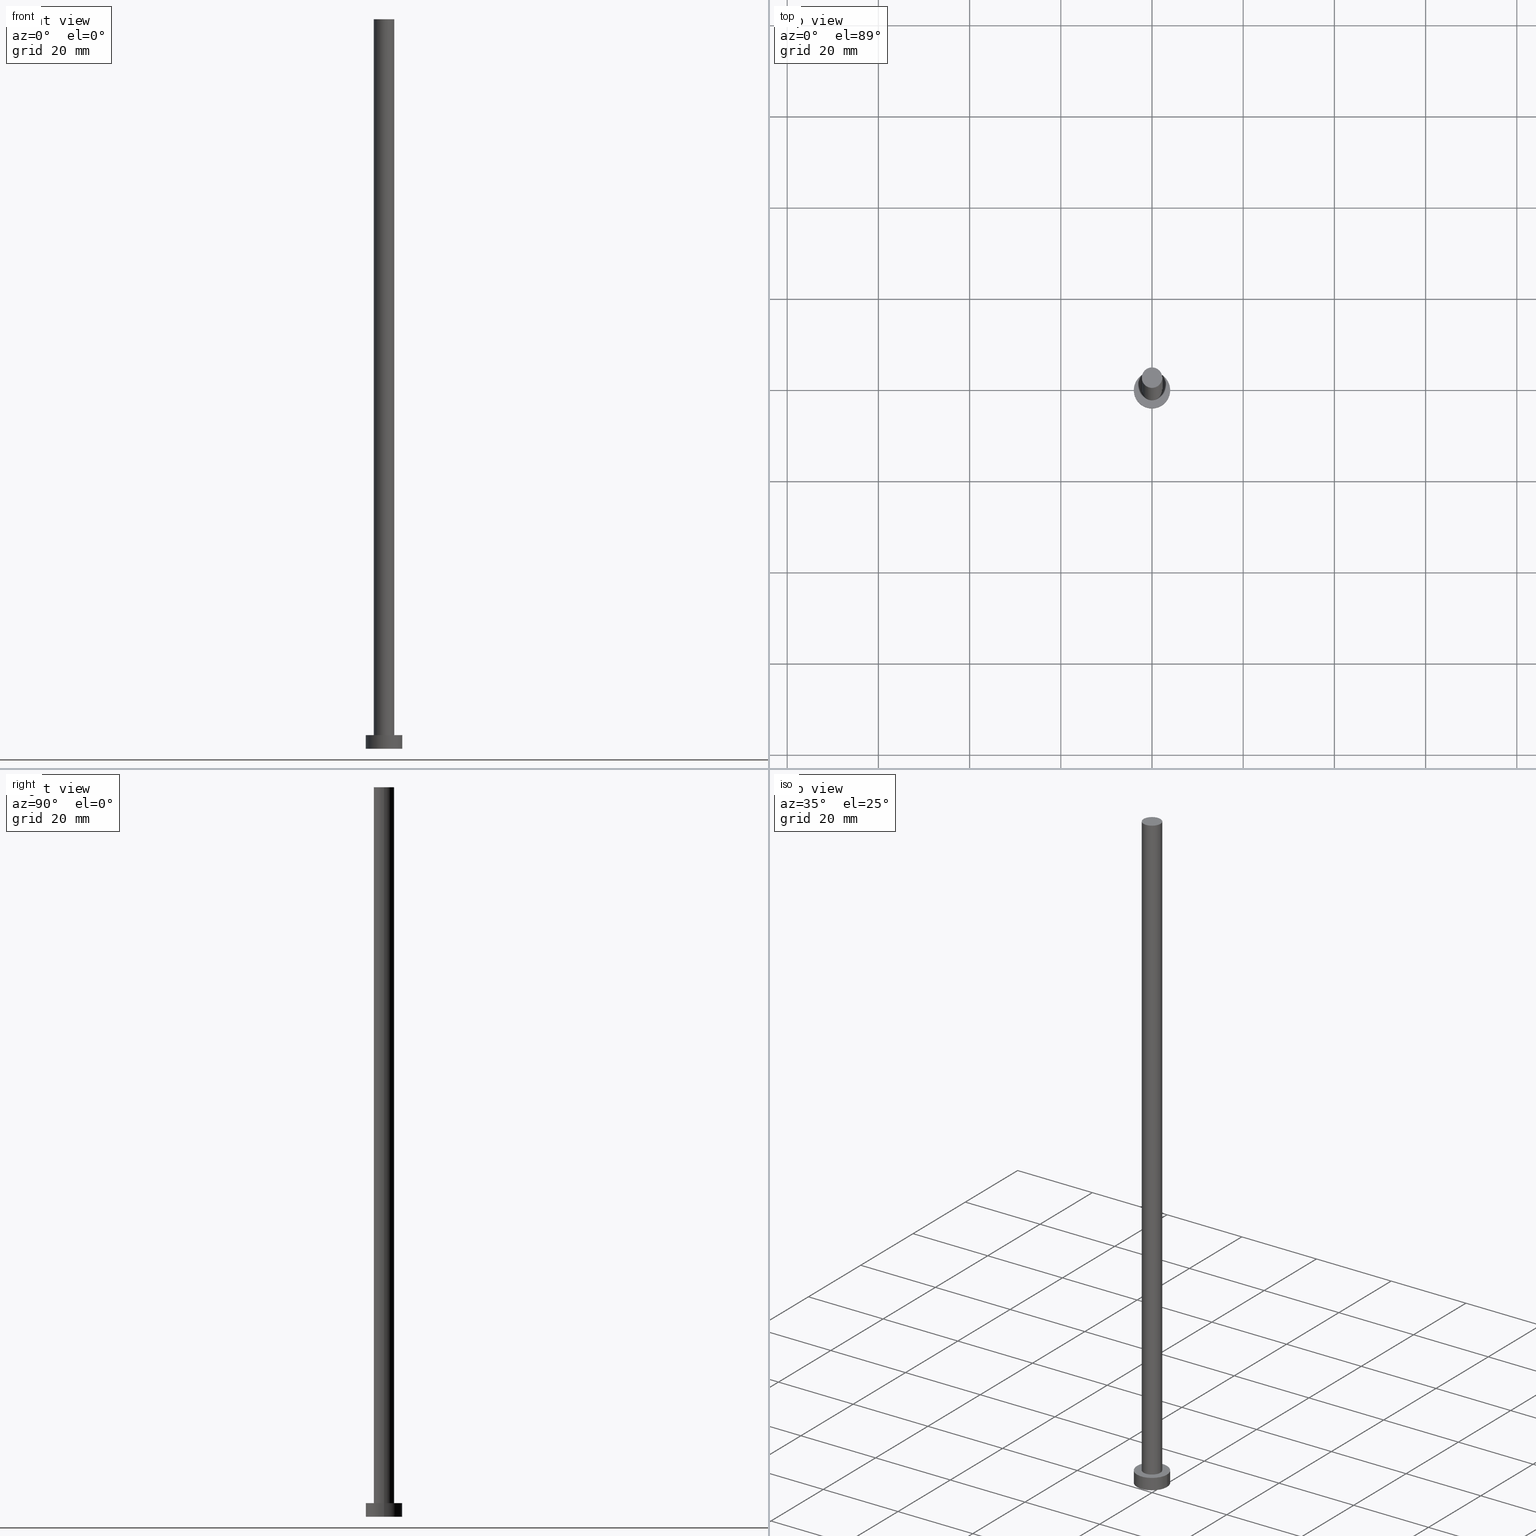
[diagram: canonical four-view strip — front | top / right | iso, engineering-drawing reading convention]
A machine part, canonical four-view strip (front | top / right | iso — engineering-drawing reading convention). The complete STEP part file that produces these views, byte-faithful:
ISO-10303-21;
HEADER;
FILE_DESCRIPTION (( 'STEP AP203' ),
    '1' );
FILE_NAME ('09de.STEP',
    '2023-02-13T13:28:34',
    ( '' ),
    ( '' ),
    'SwSTEP 2.0',
    'SolidWorks 2019',
    '' );
FILE_SCHEMA (( 'CONFIG_CONTROL_DESIGN' ));
ENDSEC;

DATA;
#1 = APPROVAL_DATE_TIME ( #38, #107 ) ;
#2 = CC_DESIGN_APPROVAL ( #107, ( #203 ) ) ;
#3 = CIRCLE ( 'NONE', #208, 4.000000000000000000 ) ;
#4 = PERSON_AND_ORGANIZATION ( #185, #254 ) ;
#5 = DESIGN_CONTEXT ( 'detailed design', #34, 'design' ) ;
#6 = COORDINATED_UNIVERSAL_TIME_OFFSET ( 1, 0, .AHEAD. ) ;
#7 = ORIENTED_EDGE ( 'NONE', *, *, #213, .F. ) ;
#8 = CARTESIAN_POINT ( 'NONE',  ( 0.000000000000000000, 0.000000000000000000, 160.0000000000000000 ) ) ;
#9 = ORIENTED_EDGE ( 'NONE', *, *, #255, .F. ) ;
#10 = CARTESIAN_POINT ( 'NONE',  ( 0.000000000000000000, 0.000000000000000000, 160.0000000000000000 ) ) ;
#11 = PLANE ( 'NONE',  #131 ) ;
#12 = ORIENTED_EDGE ( 'NONE', *, *, #111, .F. ) ;
#13 = ADVANCED_FACE ( 'NONE', ( #207 ), #154, .T. ) ;
#14 = DIRECTION ( 'NONE',  ( 0.000000000000000000, 0.000000000000000000, 1.000000000000000000 ) ) ;
#15 = VERTEX_POINT ( 'NONE', #244 ) ;
#16 = LINE ( 'NONE', #245, #97 ) ;
#17 = ORIENTED_EDGE ( 'NONE', *, *, #196, .F. ) ;
#18 = EDGE_LOOP ( 'NONE', ( #170, #174, #129, #227 ) ) ;
#19 = ORIENTED_EDGE ( 'NONE', *, *, #234, .T. ) ;
#20 = APPROVAL_PERSON_ORGANIZATION ( #236, #107, #41 ) ;
#21 = EDGE_LOOP ( 'NONE', ( #43, #12 ) ) ;
#22 = AXIS2_PLACEMENT_3D ( 'NONE', #152, #86, #112 ) ;
#23 = DATE_TIME_ROLE ( 'classification_date' ) ;
#24 = PERSON_AND_ORGANIZATION ( #185, #254 ) ;
#25 = CIRCLE ( 'NONE', #195, 2.250000000000000000 ) ;
#26 = PERSON_AND_ORGANIZATION ( #185, #254 ) ;
#27 = CARTESIAN_POINT ( 'NONE',  ( -4.000000000000000000, 0.000000000000000000, 3.000000000000000000 ) ) ;
#28 = DIRECTION ( 'NONE',  ( 0.000000000000000000, 0.000000000000000000, 1.000000000000000000 ) ) ;
#29 = FACE_OUTER_BOUND ( 'NONE', #91, .T. ) ;
#30 = ORIENTED_EDGE ( 'NONE', *, *, #153, .T. ) ;
#31 = CARTESIAN_POINT ( 'NONE',  ( 0.000000000000000000, 0.000000000000000000, 160.0000000000000000 ) ) ;
#32 = ORIENTED_EDGE ( 'NONE', *, *, #111, .T. ) ;
#33 = DIRECTION ( 'NONE',  ( -0.000000000000000000, -0.000000000000000000, -1.000000000000000000 ) ) ;
#34 = APPLICATION_CONTEXT ( 'configuration controlled 3d designs of mechanical parts and assemblies' ) ;
#35 = VERTEX_POINT ( 'NONE', #52 ) ;
#36 = AXIS2_PLACEMENT_3D ( 'NONE', #8, #150, #188 ) ;
#37 = EDGE_CURVE ( 'NONE', #85, #15, #67, .T. ) ;
#38 = DATE_AND_TIME ( #216, #118 ) ;
#39 = APPROVAL_STATUS ( 'not_yet_approved' ) ;
#40 = CALENDAR_DATE ( 2023, 13, 2 ) ;
#41 = APPROVAL_ROLE ( '' ) ;
#42 = DIRECTION ( 'NONE',  ( 0.000000000000000000, 0.000000000000000000, 1.000000000000000000 ) ) ;
#43 = ORIENTED_EDGE ( 'NONE', *, *, #130, .F. ) ;
#44 = ADVANCED_FACE ( 'NONE', ( #115 ), #205, .T. ) ;
#45 = CARTESIAN_POINT ( 'NONE',  ( 4.000000000000000000, 4.898587196589412829E-16, 0.000000000000000000 ) ) ;
#46 = DIRECTION ( 'NONE',  ( -1.000000000000000000, 0.000000000000000000, 0.000000000000000000 ) ) ;
#47 = CARTESIAN_POINT ( 'NONE',  ( 0.000000000000000000, 0.000000000000000000, 3.000000000000000000 ) ) ;
#48 = EDGE_LOOP ( 'NONE', ( #211, #210, #72, #168 ) ) ;
#49 = EDGE_LOOP ( 'NONE', ( #93, #156 ) ) ;
#50 = CIRCLE ( 'NONE', #120, 2.250000000000000000 ) ;
#51 = DIRECTION ( 'NONE',  ( 1.000000000000000000, 0.000000000000000000, 0.000000000000000000 ) ) ;
#52 = CARTESIAN_POINT ( 'NONE',  ( 4.000000000000000000, 4.898587196589412829E-16, 3.000000000000000000 ) ) ;
#53 = ADVANCED_FACE ( 'NONE', ( #110 ), #104, .F. ) ;
#54 = PRODUCT_DEFINITION ( 'NEZN�M�', '', #136, #5 ) ;
#55 = ADVANCED_BREP_SHAPE_REPRESENTATION ( '09de', ( #133, #109 ), #217 ) ;
#56 = VECTOR ( 'NONE', #92, 1000.000000000000000 ) ;
#57 = CC_DESIGN_PERSON_AND_ORGANIZATION_ASSIGNMENT ( #79, #103, ( #239 ) ) ;
#58 = DATE_AND_TIME ( #233, #87 ) ;
#59 = CIRCLE ( 'NONE', #177, 4.000000000000000000 ) ;
#60 = COORDINATED_UNIVERSAL_TIME_OFFSET ( 1, 0, .AHEAD. ) ;
#61 = PERSON_AND_ORGANIZATION_ROLE ( 'creator' ) ;
#62 = APPROVAL_ROLE ( '' ) ;
#63 = DIRECTION ( 'NONE',  ( 1.000000000000000000, 0.000000000000000000, 0.000000000000000000 ) ) ;
#64 = LOCAL_TIME ( 14, 28, 34.00000000000000000, #218 ) ;
#65 = CARTESIAN_POINT ( 'NONE',  ( 0.000000000000000000, 0.000000000000000000, 0.000000000000000000 ) ) ;
#66 = CARTESIAN_POINT ( 'NONE',  ( 0.000000000000000000, 0.000000000000000000, 160.0000000000000000 ) ) ;
#67 = LINE ( 'NONE', #151, #161 ) ;
#68 = LINE ( 'NONE', #241, #56 ) ;
#69 = DIRECTION ( 'NONE',  ( -1.000000000000000000, 0.000000000000000000, 0.000000000000000000 ) ) ;
#70 = ORIENTED_EDGE ( 'NONE', *, *, #178, .T. ) ;
#71 = DIRECTION ( 'NONE',  ( -0.000000000000000000, -0.000000000000000000, -1.000000000000000000 ) ) ;
#72 = ORIENTED_EDGE ( 'NONE', *, *, #196, .T. ) ;
#73 = AXIS2_PLACEMENT_3D ( 'NONE', #31, #225, #63 ) ;
#74 = DIRECTION ( 'NONE',  ( -0.000000000000000000, -0.000000000000000000, -1.000000000000000000 ) ) ;
#75 = LOCAL_TIME ( 14, 28, 34.00000000000000000, #80 ) ;
#76 = ADVANCED_FACE ( 'NONE', ( #149, #222 ), #125, .T. ) ;
#77 = PERSON_AND_ORGANIZATION_ROLE ( 'creator' ) ;
#78 = CC_DESIGN_SECURITY_CLASSIFICATION ( #203, ( #136 ) ) ;
#79 = PERSON_AND_ORGANIZATION ( #185, #254 ) ;
#80 = COORDINATED_UNIVERSAL_TIME_OFFSET ( 1, 0, .AHEAD. ) ;
#81 = ADVANCED_FACE ( 'NONE', ( #106 ), #11, .T. ) ;
#82 = AXIS2_PLACEMENT_3D ( 'NONE', #224, #228, #69 ) ;
#83 = CARTESIAN_POINT ( 'NONE',  ( 0.000000000000000000, 0.000000000000000000, 0.000000000000000000 ) ) ;
#84 = APPLICATION_PROTOCOL_DEFINITION ( 'international standard', 'config_control_design', 1994, #215 ) ;
#85 = VERTEX_POINT ( 'NONE', #192 ) ;
#86 = DIRECTION ( 'NONE',  ( 0.000000000000000000, 0.000000000000000000, 1.000000000000000000 ) ) ;
#87 = LOCAL_TIME ( 14, 28, 34.00000000000000000, #198 ) ;
#88 = ORIENTED_EDGE ( 'NONE', *, *, #37, .T. ) ;
#89 = PRODUCT_RELATED_PRODUCT_CATEGORY ( 'detail', '', ( #239 ) ) ;
#90 = DIRECTION ( 'NONE',  ( 1.000000000000000000, 0.000000000000000000, 0.000000000000000000 ) ) ;
#91 = EDGE_LOOP ( 'NONE', ( #9, #88, #32, #17 ) ) ;
#92 = DIRECTION ( 'NONE',  ( -0.000000000000000000, -0.000000000000000000, -1.000000000000000000 ) ) ;
#93 = ORIENTED_EDGE ( 'NONE', *, *, #178, .F. ) ;
#94 = DIRECTION ( 'NONE',  ( -0.000000000000000000, -0.000000000000000000, -1.000000000000000000 ) ) ;
#95 = VERTEX_POINT ( 'NONE', #45 ) ;
#96 = APPROVAL_PERSON_ORGANIZATION ( #4, #137, #62 ) ;
#97 = VECTOR ( 'NONE', #71, 1000.000000000000000 ) ;
#98 = DATE_AND_TIME ( #40, #141 ) ;
#99 = ADVANCED_FACE ( 'NONE', ( #209 ), #128, .T. ) ;
#100 = APPROVAL_STATUS ( 'not_yet_approved' ) ;
#101 = PERSON_AND_ORGANIZATION_ROLE ( 'design_supplier' ) ;
#102 = DIRECTION ( 'NONE',  ( 0.000000000000000000, 0.000000000000000000, 1.000000000000000000 ) ) ;
#103 = PERSON_AND_ORGANIZATION_ROLE ( 'design_owner' ) ;
#104 = PLANE ( 'NONE',  #143 ) ;
#105 = DIRECTION ( 'NONE',  ( 0.000000000000000000, 0.000000000000000000, 1.000000000000000000 ) ) ;
#106 = FACE_OUTER_BOUND ( 'NONE', #117, .T. ) ;
#107 = APPROVAL ( #100, 'NEUR�EN�' ) ;
#108 = DIRECTION ( 'NONE',  ( 0.000000000000000000, 0.000000000000000000, 1.000000000000000000 ) ) ;
#109 = AXIS2_PLACEMENT_3D ( 'NONE', #83, #102, #240 ) ;
#110 = FACE_OUTER_BOUND ( 'NONE', #49, .T. ) ;
#111 = EDGE_CURVE ( 'NONE', #15, #248, #181, .T. ) ;
#112 = DIRECTION ( 'NONE',  ( 1.000000000000000000, 0.000000000000000000, 0.000000000000000000 ) ) ;
#113 = VERTEX_POINT ( 'NONE', #204 ) ;
#114 = CARTESIAN_POINT ( 'NONE',  ( 0.000000000000000000, 0.000000000000000000, 0.000000000000000000 ) ) ;
#115 = FACE_OUTER_BOUND ( 'NONE', #18, .T. ) ;
#116 = ADVANCED_FACE ( 'NONE', ( #29 ), #206, .T. ) ;
#117 = EDGE_LOOP ( 'NONE', ( #191, #134 ) ) ;
#118 = LOCAL_TIME ( 14, 28, 34.00000000000000000, #60 ) ;
#119 = APPROVAL ( #39, 'NEUR�EN�' ) ;
#120 = AXIS2_PLACEMENT_3D ( 'NONE', #148, #230, #51 ) ;
#121 = APPLICATION_PROTOCOL_DEFINITION ( 'international standard', 'config_control_design', 1994, #34 ) ;
#122 = APPROVAL_DATE_TIME ( #98, #119 ) ;
#123 =( NAMED_UNIT ( * ) SI_UNIT ( $, .STERADIAN. ) SOLID_ANGLE_UNIT ( ) );
#124 = DIRECTION ( 'NONE',  ( 0.000000000000000000, 0.000000000000000000, 1.000000000000000000 ) ) ;
#125 = PLANE ( 'NONE',  #214 ) ;
#126 = DIRECTION ( 'NONE',  ( 1.000000000000000000, 0.000000000000000000, -0.000000000000000000 ) ) ;
#127 = VERTEX_POINT ( 'NONE', #190 ) ;
#128 = CYLINDRICAL_SURFACE ( 'NONE', #36, 2.250000000000000000 ) ;
#129 = ORIENTED_EDGE ( 'NONE', *, *, #162, .T. ) ;
#130 = EDGE_CURVE ( 'NONE', #248, #15, #50, .T. ) ;
#131 = AXIS2_PLACEMENT_3D ( 'NONE', #66, #108, #126 ) ;
#132 = DIRECTION ( 'NONE',  ( 1.000000000000000000, 0.000000000000000000, 0.000000000000000000 ) ) ;
#133 = MANIFOLD_SOLID_BREP ( 'P�idat vysunut�m3', #231 ) ;
#134 = ORIENTED_EDGE ( 'NONE', *, *, #255, .T. ) ;
#135 = CC_DESIGN_DATE_AND_TIME_ASSIGNMENT ( #139, #166, ( #54 ) ) ;
#136 = PRODUCT_DEFINITION_FORMATION_WITH_SPECIFIED_SOURCE ( 'LIBOVOLN�', '', #239, .NOT_KNOWN. ) ;
#137 = APPROVAL ( #179, 'NEUR�EN�' ) ;
#138 = CIRCLE ( 'NONE', #176, 4.000000000000000000 ) ;
#139 = DATE_AND_TIME ( #182, #64 ) ;
#140 = EDGE_LOOP ( 'NONE', ( #212, #30 ) ) ;
#141 = LOCAL_TIME ( 14, 28, 34.00000000000000000, #6 ) ;
#142 = PERSON_AND_ORGANIZATION ( #185, #254 ) ;
#143 = AXIS2_PLACEMENT_3D ( 'NONE', #65, #183, #242 ) ;
#144 = SHAPE_DEFINITION_REPRESENTATION ( #221, #55 ) ;
#145 = UNCERTAINTY_MEASURE_WITH_UNIT (LENGTH_MEASURE( 1.000000000000000082E-05 ), #175, 'distance_accuracy_value', 'NONE');
#146 = APPROVAL_DATE_TIME ( #58, #137 ) ;
#147 = CC_DESIGN_APPROVAL ( #137, ( #54 ) ) ;
#148 = CARTESIAN_POINT ( 'NONE',  ( 0.000000000000000000, 0.000000000000000000, 3.000000000000000000 ) ) ;
#149 = FACE_BOUND ( 'NONE', #21, .T. ) ;
#150 = DIRECTION ( 'NONE',  ( -0.000000000000000000, -0.000000000000000000, -1.000000000000000000 ) ) ;
#151 = CARTESIAN_POINT ( 'NONE',  ( 2.250000000000000000, 2.755455298081544285E-16, 160.0000000000000000 ) ) ;
#152 = CARTESIAN_POINT ( 'NONE',  ( 0.000000000000000000, 0.000000000000000000, 3.000000000000000000 ) ) ;
#153 = EDGE_CURVE ( 'NONE', #35, #172, #59, .T. ) ;
#154 = CYLINDRICAL_SURFACE ( 'NONE', #82, 4.000000000000000000 ) ;
#155 = DIRECTION ( 'NONE',  ( -0.000000000000000000, -0.000000000000000000, -1.000000000000000000 ) ) ;
#156 = ORIENTED_EDGE ( 'NONE', *, *, #162, .F. ) ;
#157 = CC_DESIGN_PERSON_AND_ORGANIZATION_ASSIGNMENT ( #26, #232, ( #203 ) ) ;
#158 = CIRCLE ( 'NONE', #22, 4.000000000000000000 ) ;
#159 = DIRECTION ( 'NONE',  ( -1.000000000000000000, 0.000000000000000000, 0.000000000000000000 ) ) ;
#160 = CC_DESIGN_PERSON_AND_ORGANIZATION_ASSIGNMENT ( #167, #77, ( #136 ) ) ;
#161 = VECTOR ( 'NONE', #33, 1000.000000000000000 ) ;
#162 = EDGE_CURVE ( 'NONE', #95, #127, #138, .T. ) ;
#163 = CALENDAR_DATE ( 2023, 13, 2 ) ;
#164 = MECHANICAL_CONTEXT ( 'NONE', #215, 'mechanical' ) ;
#165 = VECTOR ( 'NONE', #155, 1000.000000000000000 ) ;
#166 = DATE_TIME_ROLE ( 'creation_date' ) ;
#167 = PERSON_AND_ORGANIZATION ( #185, #254 ) ;
#168 = ORIENTED_EDGE ( 'NONE', *, *, #130, .T. ) ;
#169 = CARTESIAN_POINT ( 'NONE',  ( -4.000000000000000000, 0.000000000000000000, 3.000000000000000000 ) ) ;
#170 = ORIENTED_EDGE ( 'NONE', *, *, #153, .F. ) ;
#171 = CARTESIAN_POINT ( 'NONE',  ( 0.000000000000000000, 0.000000000000000000, 0.000000000000000000 ) ) ;
#172 = VERTEX_POINT ( 'NONE', #27 ) ;
#173 = LINE ( 'NONE', #169, #165 ) ;
#174 = ORIENTED_EDGE ( 'NONE', *, *, #194, .T. ) ;
#175 =( LENGTH_UNIT ( ) NAMED_UNIT ( * ) SI_UNIT ( .MILLI., .METRE. ) );
#176 = AXIS2_PLACEMENT_3D ( 'NONE', #114, #14, #90 ) ;
#177 = AXIS2_PLACEMENT_3D ( 'NONE', #47, #42, #220 ) ;
#178 = EDGE_CURVE ( 'NONE', #127, #95, #3, .T. ) ;
#179 = APPROVAL_STATUS ( 'not_yet_approved' ) ;
#180 = SECURITY_CLASSIFICATION_LEVEL ( 'unclassified' ) ;
#181 = CIRCLE ( 'NONE', #229, 2.250000000000000000 ) ;
#182 = CALENDAR_DATE ( 2023, 13, 2 ) ;
#183 = DIRECTION ( 'NONE',  ( 0.000000000000000000, 0.000000000000000000, 1.000000000000000000 ) ) ;
#184 = CC_DESIGN_APPROVAL ( #119, ( #136 ) ) ;
#185 = PERSON ( 'NEUR�EN�', 'NEUR�EN�', 'NEUR�EN�', ('NEUR�EN�'), ('NEUR�EN�'), ('NEUR�EN�') ) ;
#186 = DIRECTION ( 'NONE',  ( 1.000000000000000000, 0.000000000000000000, 0.000000000000000000 ) ) ;
#187 = ORIENTED_EDGE ( 'NONE', *, *, #194, .F. ) ;
#188 = DIRECTION ( 'NONE',  ( -1.000000000000000000, 0.000000000000000000, 0.000000000000000000 ) ) ;
#189 = DIRECTION ( 'NONE',  ( 1.000000000000000000, 0.000000000000000000, -0.000000000000000000 ) ) ;
#190 = CARTESIAN_POINT ( 'NONE',  ( -4.000000000000000000, 0.000000000000000000, 0.000000000000000000 ) ) ;
#191 = ORIENTED_EDGE ( 'NONE', *, *, #197, .T. ) ;
#192 = CARTESIAN_POINT ( 'NONE',  ( 2.250000000000000000, 2.755455298081544285E-16, 160.0000000000000000 ) ) ;
#193 = CARTESIAN_POINT ( 'NONE',  ( 0.000000000000000000, 0.000000000000000000, 3.000000000000000000 ) ) ;
#194 = EDGE_CURVE ( 'NONE', #35, #95, #16, .T. ) ;
#195 = AXIS2_PLACEMENT_3D ( 'NONE', #243, #226, #132 ) ;
#196 = EDGE_CURVE ( 'NONE', #113, #248, #68, .T. ) ;
#197 = EDGE_CURVE ( 'NONE', #113, #85, #235, .T. ) ;
#198 = COORDINATED_UNIVERSAL_TIME_OFFSET ( 1, 0, .AHEAD. ) ;
#199 = APPROVAL_ROLE ( '' ) ;
#200 =( NAMED_UNIT ( * ) PLANE_ANGLE_UNIT ( ) SI_UNIT ( $, .RADIAN. ) );
#201 = DIRECTION ( 'NONE',  ( 1.000000000000000000, 0.000000000000000000, 0.000000000000000000 ) ) ;
#202 = CARTESIAN_POINT ( 'NONE',  ( 0.000000000000000000, 0.000000000000000000, 3.000000000000000000 ) ) ;
#203 = SECURITY_CLASSIFICATION ( '', '', #180 ) ;
#204 = CARTESIAN_POINT ( 'NONE',  ( -2.250000000000000000, 0.000000000000000000, 160.0000000000000000 ) ) ;
#205 = CYLINDRICAL_SURFACE ( 'NONE', #253, 4.000000000000000000 ) ;
#206 = CYLINDRICAL_SURFACE ( 'NONE', #249, 2.250000000000000000 ) ;
#207 = FACE_OUTER_BOUND ( 'NONE', #246, .T. ) ;
#208 = AXIS2_PLACEMENT_3D ( 'NONE', #171, #105, #186 ) ;
#209 = FACE_OUTER_BOUND ( 'NONE', #48, .T. ) ;
#210 = ORIENTED_EDGE ( 'NONE', *, *, #197, .F. ) ;
#211 = ORIENTED_EDGE ( 'NONE', *, *, #37, .F. ) ;
#212 = ORIENTED_EDGE ( 'NONE', *, *, #213, .T. ) ;
#213 = EDGE_CURVE ( 'NONE', #172, #35, #158, .T. ) ;
#214 = AXIS2_PLACEMENT_3D ( 'NONE', #202, #28, #189 ) ;
#215 = APPLICATION_CONTEXT ( 'configuration controlled 3d designs of mechanical parts and assemblies' ) ;
#216 = CALENDAR_DATE ( 2023, 13, 2 ) ;
#217 =( GEOMETRIC_REPRESENTATION_CONTEXT ( 3 ) GLOBAL_UNCERTAINTY_ASSIGNED_CONTEXT ( ( #145 ) ) GLOBAL_UNIT_ASSIGNED_CONTEXT ( ( #175, #200, #123 ) ) REPRESENTATION_CONTEXT ( 'NONE', 'WORKASPACE' ) );
#218 = COORDINATED_UNIVERSAL_TIME_OFFSET ( 1, 0, .AHEAD. ) ;
#219 = DATE_AND_TIME ( #163, #75 ) ;
#220 = DIRECTION ( 'NONE',  ( 1.000000000000000000, 0.000000000000000000, 0.000000000000000000 ) ) ;
#221 = PRODUCT_DEFINITION_SHAPE ( 'NONE', 'NONE',  #54 ) ;
#222 = FACE_OUTER_BOUND ( 'NONE', #140, .T. ) ;
#223 = CARTESIAN_POINT ( 'NONE',  ( 0.000000000000000000, 0.000000000000000000, 3.000000000000000000 ) ) ;
#224 = CARTESIAN_POINT ( 'NONE',  ( 0.000000000000000000, 0.000000000000000000, 3.000000000000000000 ) ) ;
#225 = DIRECTION ( 'NONE',  ( 0.000000000000000000, 0.000000000000000000, 1.000000000000000000 ) ) ;
#226 = DIRECTION ( 'NONE',  ( 0.000000000000000000, 0.000000000000000000, 1.000000000000000000 ) ) ;
#227 = ORIENTED_EDGE ( 'NONE', *, *, #234, .F. ) ;
#228 = DIRECTION ( 'NONE',  ( -0.000000000000000000, -0.000000000000000000, -1.000000000000000000 ) ) ;
#229 = AXIS2_PLACEMENT_3D ( 'NONE', #223, #124, #201 ) ;
#230 = DIRECTION ( 'NONE',  ( 0.000000000000000000, 0.000000000000000000, 1.000000000000000000 ) ) ;
#231 = CLOSED_SHELL ( 'NONE', ( #116, #44, #13, #76, #53, #99, #81 ) ) ;
#232 = PERSON_AND_ORGANIZATION_ROLE ( 'classification_officer' ) ;
#233 = CALENDAR_DATE ( 2023, 13, 2 ) ;
#234 = EDGE_CURVE ( 'NONE', #172, #127, #173, .T. ) ;
#235 = CIRCLE ( 'NONE', #73, 2.250000000000000000 ) ;
#236 = PERSON_AND_ORGANIZATION ( #185, #254 ) ;
#237 = CC_DESIGN_DATE_AND_TIME_ASSIGNMENT ( #219, #23, ( #203 ) ) ;
#238 = PERSON_AND_ORGANIZATION ( #185, #254 ) ;
#239 = PRODUCT ( '09de', '09de', '', ( #164 ) ) ;
#240 = DIRECTION ( 'NONE',  ( 1.000000000000000000, 0.000000000000000000, 0.000000000000000000 ) ) ;
#241 = CARTESIAN_POINT ( 'NONE',  ( -2.250000000000000000, 0.000000000000000000, 160.0000000000000000 ) ) ;
#242 = DIRECTION ( 'NONE',  ( 1.000000000000000000, 0.000000000000000000, -0.000000000000000000 ) ) ;
#243 = CARTESIAN_POINT ( 'NONE',  ( 0.000000000000000000, 0.000000000000000000, 160.0000000000000000 ) ) ;
#244 = CARTESIAN_POINT ( 'NONE',  ( 2.250000000000000000, 2.755455298081544285E-16, 3.000000000000000000 ) ) ;
#245 = CARTESIAN_POINT ( 'NONE',  ( 4.000000000000000000, 4.898587196589412829E-16, 3.000000000000000000 ) ) ;
#246 = EDGE_LOOP ( 'NONE', ( #187, #7, #19, #70 ) ) ;
#247 = CARTESIAN_POINT ( 'NONE',  ( -2.250000000000000000, 0.000000000000000000, 3.000000000000000000 ) ) ;
#248 = VERTEX_POINT ( 'NONE', #247 ) ;
#249 = AXIS2_PLACEMENT_3D ( 'NONE', #10, #74, #159 ) ;
#250 = CC_DESIGN_PERSON_AND_ORGANIZATION_ASSIGNMENT ( #24, #101, ( #136 ) ) ;
#251 = CC_DESIGN_PERSON_AND_ORGANIZATION_ASSIGNMENT ( #238, #61, ( #54 ) ) ;
#252 = APPROVAL_PERSON_ORGANIZATION ( #142, #119, #199 ) ;
#253 = AXIS2_PLACEMENT_3D ( 'NONE', #193, #94, #46 ) ;
#254 = ORGANIZATION ( 'NEUR�EN�', 'NEUR�EN�', '' ) ;
#255 = EDGE_CURVE ( 'NONE', #85, #113, #25, .T. ) ;
ENDSEC;
END-ISO-10303-21;
